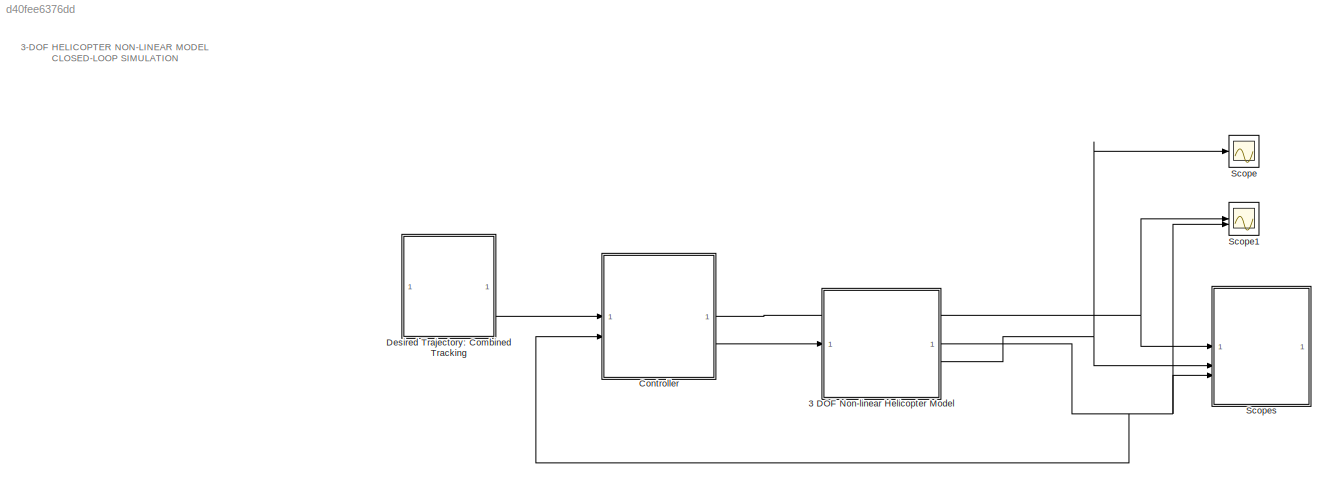
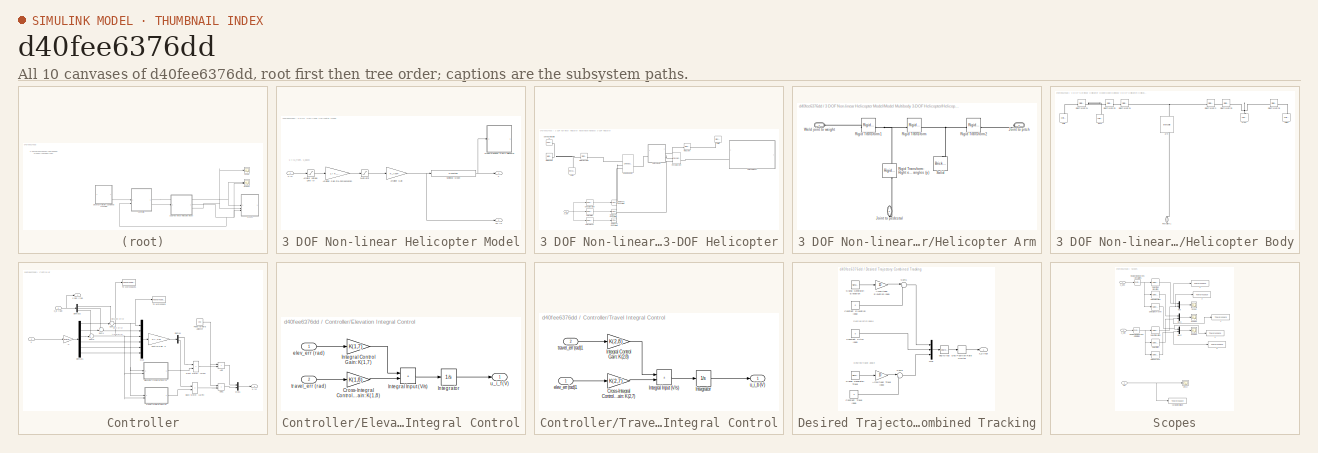
[diagram: thumbnail index - all 10 canvases of the model, root first then tree order]
MODEL slx_d40fee6376dd
KIND model
CONFIG AbsTol = auto
CONFIG EnableMultiTasking = on
CONFIG FixedStep = 0.005
CONFIG MaxStep = 1e-3
CONFIG MinStep = 1e-5
CONFIG RelTol = 1e-5
CONFIG SampleTimeConstraint = Unconstrained
CONFIG SolverName = ode1
CONFIG StartTime = 0.0
CONFIG StopTime = 50
BLOCK [SubSystem] 3 DOF Non-linear Helicopter Model
BLOCK [S-Function] 3 DOF Non-linear Helicopter Model/ Nonlinear Model
  EnableBusSupport = off
  FunctionName = Nonlinear_Helicopter_SFunc
  Parameters = par,X0
  SFcnIsStateOwnerBlock = off
  SFunctionDeploymentMode = off
BLOCK [Saturate] 3 DOF Non-linear Helicopter Model/Amplifer Voltage Limit (V)
  LowerLimit = -VMAX_AMP
  UpperLimit = VMAX_AMP
BLOCK [Gain] 3 DOF Non-linear Helicopter Model/Amplifier Gain
  Gain = K_AMP
  Multiplication = Matrix(K*u)
  OutDataTypeStr = Inherit: Same as input
  ParamDataTypeStr = Inherit: Same as input
  SaturateOnIntegerOverflow = on
BLOCK [Gain] 3 DOF Non-linear Helicopter Model/Amplifier Gain Pre-Compensation
  Gain = 1 / K_AMP
  Multiplication = Matrix(K*u)
  OutDataTypeStr = Inherit: Same as input
  ParamDataTypeStr = Inherit: Same as input
  SaturateOnIntegerOverflow = on
BLOCK [Saturate] 3 DOF Non-linear Helicopter Model/DACB Limit
  LowerLimit = -VMAX_DAC
  UpperLimit = VMAX_DAC
BLOCK [SubSystem] 3 DOF Non-linear Helicopter Model/Model Multibody 3-DOF Helicopter
BLOCK [SubSystem] 3 DOF Non-linear Helicopter Model/Model Multibody 3-DOF Helicopter/Helicopter Arm
BLOCK [PMIOPort] 3 DOF Non-linear Helicopter Model/Model Multibody 3-DOF Helicopter/Helicopter Arm/Joint to pedestal
  NameLocation = left
  Port = 2
  Side = Right
BLOCK [PMIOPort] 3 DOF Non-linear Helicopter Model/Model Multibody 3-DOF Helicopter/Helicopter Arm/Joint to pitch
  NameLocation = top
  Port = 3
  Side = Left
BLOCK [Reference] 3 DOF Non-linear Helicopter Model/Model Multibody 3-DOF Helicopter/Helicopter Arm/Rigid Transform  REF=sm_lib/Frames and
Transforms/Rigid
Transform
  SourceBlock = sm_lib/Frames and\nTransforms/Rigid\nTransform
  SourceType = Rigid\nTransform
BLOCK [Reference] 3 DOF Non-linear Helicopter Model/Model Multibody 3-DOF Helicopter/Helicopter Arm/Rigid Transform1  REF=sm_lib/Frames and
Transforms/Rigid
Transform
  SourceBlock = sm_lib/Frames and\nTransforms/Rigid\nTransform
  SourceType = Rigid\nTransform
BLOCK [Reference] 3 DOF Non-linear Helicopter Model/Model Multibody 3-DOF Helicopter/Helicopter Arm/Rigid Transform2  REF=sm_lib/Frames and
Transforms/Rigid
Transform
  SourceBlock = sm_lib/Frames and\nTransforms/Rigid\nTransform
  SourceType = Rigid\nTransform
BLOCK [Reference] 3 DOF Non-linear Helicopter Model/Model Multibody 3-DOF Helicopter/Helicopter Arm/Rigid Transform: Right elevation (x) & Travel angles (y)  REF=sm_lib/Frames and
Transforms/Rigid
Transform
  NameLocation = right
  SourceBlock = sm_lib/Frames and\nTransforms/Rigid\nTransform
  SourceType = Rigid\nTransform
BLOCK [Reference] 3 DOF Non-linear Helicopter Model/Model Multibody 3-DOF Helicopter/Helicopter Arm/Solid  REF=sm_lib/Body Elements/Brick Solid
  NameLocation = right
  SourceBlock = sm_lib/Body Elements/Brick Solid
  SourceType = Brick Solid
BLOCK [PMIOPort] 3 DOF Non-linear Helicopter Model/Model Multibody 3-DOF Helicopter/Helicopter Arm/Weld joint to weight
  NameLocation = top
  Side = Left
BLOCK [SubSystem] 3 DOF Non-linear Helicopter Model/Model Multibody 3-DOF Helicopter/Helicopter Body
BLOCK [Reference] 3 DOF Non-linear Helicopter Model/Model Multibody 3-DOF Helicopter/Helicopter Body/Back  REF=sm_lib/Body Elements/Cylindrical Solid
  NameLocation = right
  SourceBlock = sm_lib/Body Elements/Cylindrical Solid
  SourceType = Cylindrical Solid
BLOCK [Reference] 3 DOF Non-linear Helicopter Model/Model Multibody 3-DOF Helicopter/Helicopter Body/Front  REF=sm_lib/Body Elements/Cylindrical Solid
  NameLocation = right
  SourceBlock = sm_lib/Body Elements/Cylindrical Solid
  SourceType = Cylindrical Solid
BLOCK [PMIOPort] 3 DOF Non-linear Helicopter Model/Model Multibody 3-DOF Helicopter/Helicopter Body/Rho (pitch)1
  NameLocation = right
  Side = Left
BLOCK [Reference] 3 DOF Non-linear Helicopter Model/Model Multibody 3-DOF Helicopter/Helicopter Body/Rigid Transform  REF=sm_lib/Frames and
Transforms/Rigid
Transform
  SourceBlock = sm_lib/Frames and\nTransforms/Rigid\nTransform
  SourceType = Rigid\nTransform
BLOCK [Reference] 3 DOF Non-linear Helicopter Model/Model Multibody 3-DOF Helicopter/Helicopter Body/Rigid Transform1  REF=sm_lib/Frames and
Transforms/Rigid
Transform
  SourceBlock = sm_lib/Frames and\nTransforms/Rigid\nTransform
  SourceType = Rigid\nTransform
BLOCK [Reference] 3 DOF Non-linear Helicopter Model/Model Multibody 3-DOF Helicopter/Helicopter Body/Rigid Transform2  REF=sm_lib/Frames and
Transforms/Rigid
Transform
  SourceBlock = sm_lib/Frames and\nTransforms/Rigid\nTransform
  SourceType = Rigid\nTransform
BLOCK [Reference] 3 DOF Non-linear Helicopter Model/Model Multibody 3-DOF Helicopter/Helicopter Body/Rigid Transform3  REF=sm_lib/Frames and
Transforms/Rigid
Transform
  SourceBlock = sm_lib/Frames and\nTransforms/Rigid\nTransform
  SourceType = Rigid\nTransform
BLOCK [Reference] 3 DOF Non-linear Helicopter Model/Model Multibody 3-DOF Helicopter/Helicopter Body/Rigid Transform4  REF=sm_lib/Frames and
Transforms/Rigid
Transform
  SourceBlock = sm_lib/Frames and\nTransforms/Rigid\nTransform
  SourceType = Rigid\nTransform
BLOCK [Reference] 3 DOF Non-linear Helicopter Model/Model Multibody 3-DOF Helicopter/Helicopter Body/Rigid Transform5  REF=sm_lib/Frames and
Transforms/Rigid
Transform
  SourceBlock = sm_lib/Frames and\nTransforms/Rigid\nTransform
  SourceType = Rigid\nTransform
BLOCK [Reference] 3 DOF Non-linear Helicopter Model/Model Multibody 3-DOF Helicopter/Helicopter Body/Solid  REF=sm_lib/Body Elements/Cylindrical Solid
  NameLocation = right
  SourceBlock = sm_lib/Body Elements/Cylindrical Solid
  SourceType = Cylindrical Solid
BLOCK [Reference] 3 DOF Non-linear Helicopter Model/Model Multibody 3-DOF Helicopter/Helicopter Body/Solid1  REF=sm_lib/Body Elements/Cylindrical Solid
  NameLocation = right
  SourceBlock = sm_lib/Body Elements/Cylindrical Solid
  SourceType = Cylindrical Solid
BLOCK [Reference] 3 DOF Non-linear Helicopter Model/Model Multibody 3-DOF Helicopter/Helicopter Body/arm  REF=sm_lib/Body Elements/Brick Solid
  NameLocation = right
  SourceBlock = sm_lib/Body Elements/Brick Solid
  SourceType = Brick Solid
BLOCK [Reference] 3 DOF Non-linear Helicopter Model/Model Multibody 3-DOF Helicopter/Revolute Joint  REF=sm_lib/Joints/Revolute Joint
  SourceBlock = sm_lib/Joints/Revolute Joint
  SourceType = Revolute Joint
BLOCK [Reference] 3 DOF Non-linear Helicopter Model/Model Multibody 3-DOF Helicopter/Rigid-Transform  REF=sm_lib/Frames and
Transforms/Rigid
Transform
  SourceBlock = sm_lib/Frames and\nTransforms/Rigid\nTransform
  SourceType = Rigid\nTransform
BLOCK [Selector] 3 DOF Non-linear Helicopter Model/Model Multibody 3-DOF Helicopter/Select Elevation
  IndexOptions = Index vector (dialog)
  Indices = 1
  InputPortWidth = 6
  OutputSizes = 1
BLOCK [Selector] 3 DOF Non-linear Helicopter Model/Model Multibody 3-DOF Helicopter/Select Pitch
  IndexOptions = Index vector (dialog)
  Indices = 2
  InputPortWidth = 6
  OutputSizes = 1
BLOCK [Selector] 3 DOF Non-linear Helicopter Model/Model Multibody 3-DOF Helicopter/Select Travel
  IndexOptions = Index vector (dialog)
  Indices = 3
  InputPortWidth = 6
  OutputSizes = 1
BLOCK [Reference] 3 DOF Non-linear Helicopter Model/Model Multibody 3-DOF Helicopter/Simulink-PS Converter2  REF=nesl_utility/Simulink-PS
Converter
  SourceBlock = nesl_utility/Simulink-PS\nConverter
  SourceType = Simulink-PS\nConverter
BLOCK [Reference] 3 DOF Non-linear Helicopter Model/Model Multibody 3-DOF Helicopter/Simulink-PS Converter3  REF=nesl_utility/Simulink-PS
Converter
  SourceBlock = nesl_utility/Simulink-PS\nConverter
  SourceType = Simulink-PS\nConverter
BLOCK [Reference] 3 DOF Non-linear Helicopter Model/Model Multibody 3-DOF Helicopter/Simulink-PS Converter4  REF=nesl_utility/Simulink-PS
Converter
  SourceBlock = nesl_utility/Simulink-PS\nConverter
  SourceType = Simulink-PS\nConverter
BLOCK [Reference] 3 DOF Non-linear Helicopter Model/Model Multibody 3-DOF Helicopter/Solid  REF=sm_lib/Body Elements/Brick Solid
  NameLocation = right
  SourceBlock = sm_lib/Body Elements/Brick Solid
  SourceType = Brick Solid
BLOCK [Reference] 3 DOF Non-linear Helicopter Model/Model Multibody 3-DOF Helicopter/Solid1  REF=sm_lib/Body Elements/Revolved Solid
  NameLocation = right
  SourceBlock = sm_lib/Body Elements/Revolved Solid
  SourceType = Revolved Solid
BLOCK [Reference] 3 DOF Non-linear Helicopter Model/Model Multibody 3-DOF Helicopter/Solver Configuration  REF=nesl_utility/Solver
Configuration
  SourceBlock = nesl_utility/Solver\nConfiguration
  SourceType = Solver\nConfiguration
BLOCK [Reference] 3 DOF Non-linear Helicopter Model/Model Multibody 3-DOF Helicopter/Universal Joint  REF=sm_lib/Joints/Universal
Joint
  SourceBlock = sm_lib/Joints/Universal\nJoint
  SourceType = Universal\nJoint
BLOCK [Reference] 3 DOF Non-linear Helicopter Model/Model Multibody 3-DOF Helicopter/Weld Joint  REF=sm_lib/Joints/Weld Joint
  SourceBlock = sm_lib/Joints/Weld Joint
  SourceType = Weld Joint
BLOCK [Reference] 3 DOF Non-linear Helicopter Model/Model Multibody 3-DOF Helicopter/World Frame  REF=sm_lib/Frames and
Transforms/World Frame
  SourceBlock = sm_lib/Frames and\nTransforms/World Frame
  SourceType = World Frame
BLOCK [Inport] 3 DOF Non-linear Helicopter Model/Model Multibody 3-DOF Helicopter/X_sim
BLOCK [Outport] 3 DOF Non-linear Helicopter Model/Vm (V)
  Port = 2
  VectorParamsAs1DForOutWhenUnconnected = off
BLOCK [Outport] 3 DOF Non-linear Helicopter Model/X 
  VectorParamsAs1DForOutWhenUnconnected = off
BLOCK [Inport] 3 DOF Non-linear Helicopter Model/u (V)
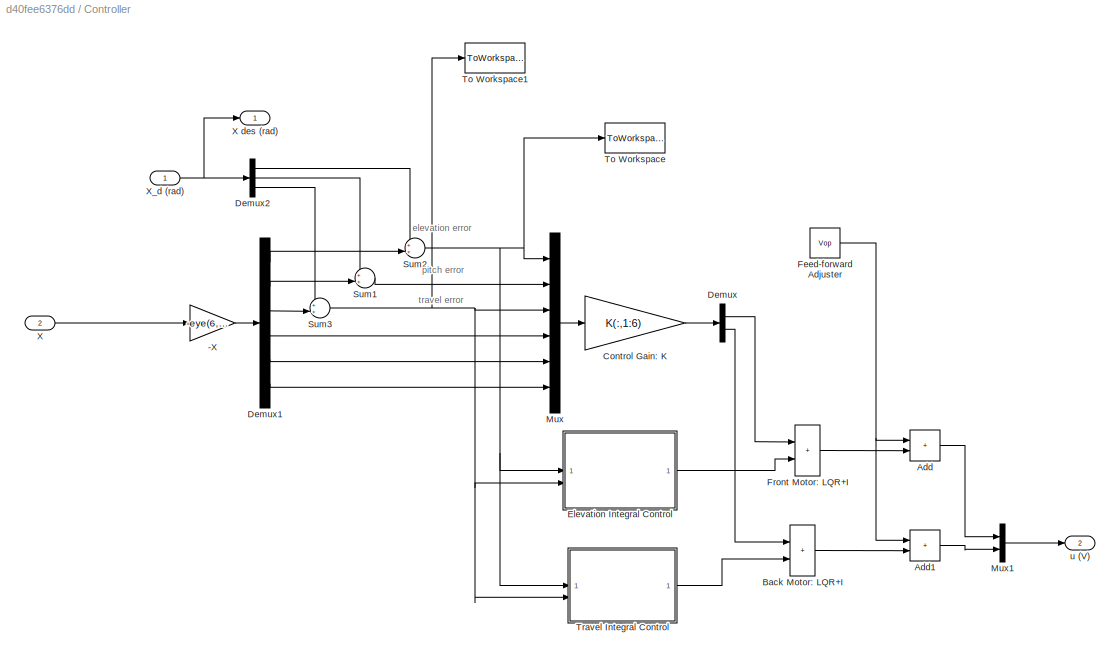
BLOCK [SubSystem] Controller
BLOCK [Gain] Controller/-X
  Gain = -eye(6,6)
  Multiplication = Matrix(K*u)
BLOCK [Sum] Controller/Add
  IconShape = rectangular
BLOCK [Sum] Controller/Add1
  IconShape = rectangular
BLOCK [Sum] Controller/Back Motor: LQR+I
  IconShape = rectangular
BLOCK [Gain] Controller/Control Gain: K
  Gain = K(:,1:6)
  Multiplication = Matrix(K*u)
BLOCK [Demux] Controller/Demux
  Outputs = 2
BLOCK [Demux] Controller/Demux1
  Outputs = 6
BLOCK [Demux] Controller/Demux2
  Outputs = 3
BLOCK [SubSystem] Controller/Elevation Integral Control
BLOCK [Gain] Controller/Elevation Integral Control/Cross-Integral Control Gain: K(1,8)
  Gain = K(1,8)
  Multiplication = Matrix(K*u)
BLOCK [Gain] Controller/Elevation Integral Control/Integral Control Gain: K(1,7)
  Gain = K(1,7)
  Multiplication = Matrix(K*u)
BLOCK [Sum] Controller/Elevation Integral Control/Integral Input (V//s)
  IconShape = rectangular
BLOCK [Integrator] Controller/Elevation Integral Control/Integrator
  LimitOutput = on
  LowerSaturationLimit = -SAT_INT_ERR_ELEV
  UpperSaturationLimit = SAT_INT_ERR_ELEV
BLOCK [Inport] Controller/Elevation Integral Control/elev_err (rad)
BLOCK [Inport] Controller/Elevation Integral Control/travel_err (rad)
  Port = 2
BLOCK [Outport] Controller/Elevation Integral Control/u_i_f (V)
  VectorParamsAs1DForOutWhenUnconnected = off
BLOCK [Constant] Controller/Feed-forward Adjuster
  Value = Vop
BLOCK [Sum] Controller/Front Motor: LQR+I
  IconShape = rectangular
BLOCK [Mux] Controller/Mux
  DisplayOption = bar
  Inputs = 6
BLOCK [Mux] Controller/Mux1
  DisplayOption = bar
  Inputs = 2
BLOCK [Sum] Controller/Sum1
  Inputs = ++|
BLOCK [Sum] Controller/Sum2
  Inputs = ++|
BLOCK [Sum] Controller/Sum3
  Inputs = ++|
BLOCK [ToWorkspace] Controller/To Workspace
  FixptAsFi = on
  MaxDataPoints = inf
  SampleTime = -1
  VariableName = err_elevation
BLOCK [ToWorkspace] Controller/To Workspace1
  FixptAsFi = on
  MaxDataPoints = inf
  SampleTime = -1
  VariableName = err_travel
BLOCK [SubSystem] Controller/Travel Integral Control
BLOCK [Gain] Controller/Travel Integral Control/Cross-Integral Control Gain: K(2,7)
  Gain = K(2,7)
  Multiplication = Matrix(K*u)
BLOCK [Gain] Controller/Travel Integral Control/Integral Control Gain: K(2,8)
  Gain = K(2,8)
  Multiplication = Matrix(K*u)
BLOCK [Sum] Controller/Travel Integral Control/Integral Input (V//s)
  IconShape = rectangular
BLOCK [Integrator] Controller/Travel Integral Control/Integrator
  LimitOutput = on
  LowerSaturationLimit = -SAT_INT_ERR_TRAVEL
  UpperSaturationLimit = SAT_INT_ERR_TRAVEL
BLOCK [Inport] Controller/Travel Integral Control/elev_err (rad)1
BLOCK [Inport] Controller/Travel Integral Control/travel_err (rad)1
  Port = 2
BLOCK [Outport] Controller/Travel Integral Control/u_i_b (V)
  VectorParamsAs1DForOutWhenUnconnected = off
BLOCK [Inport] Controller/X
  Port = 2
BLOCK [Outport] Controller/X des (rad)
  VectorParamsAs1DForOutWhenUnconnected = off
BLOCK [Inport] Controller/X_d (rad)
BLOCK [Outport] Controller/u (V)
  Port = 2
  VectorParamsAs1DForOutWhenUnconnected = off
BLOCK [SubSystem] Desired Trajectory: Combined Tracking
BLOCK [Gain] Desired Trajectory: Combined Tracking/Amplitude: Elevation (deg)
  Gain = 10
BLOCK [Gain] Desired Trajectory: Combined Tracking/Amplitude: Travel (deg)
  Gain = 10
BLOCK [Constant] Desired Trajectory: Combined Tracking/Constant: Elevation (deg)
  Value = 0
BLOCK [Constant] Desired Trajectory: Combined Tracking/Constant: Pitch (deg)
  Value = 0
BLOCK [Constant] Desired Trajectory: Combined Tracking/Constant: Travel (deg)
  Value = 0
BLOCK [RateLimiter] Desired Trajectory: Combined Tracking/Des Position Rate Limiter
  FallingSlewLimit = -CMD_RATE_LIMIT
  RisingSlewLimit = CMD_RATE_LIMIT
  SampleTimeMode = inherited
BLOCK [Mux] Desired Trajectory: Combined Tracking/Mux
  DisplayOption = bar
  Inputs = 3
BLOCK [SignalGenerator] Desired Trajectory: Combined Tracking/Signal Generator: Elevation
  Frequency = 0.1
  WaveForm = square
BLOCK [SignalGenerator] Desired Trajectory: Combined Tracking/Signal Generator: Travel
  Frequency = 0.05
  WaveForm = square
BLOCK [Sum] Desired Trajectory: Combined Tracking/Sum1
  Inputs = |++
BLOCK [Sum] Desired Trajectory: Combined Tracking/Sum2
  Inputs = |++
BLOCK [Reference] Desired Trajectory: Combined Tracking/deg to rad  REF=simulink_extras/Transformations/Degrees to
Radians
  SourceBlock = simulink_extras/Transformations/Degrees to\nRadians
  SourceType = DegreesToRadians
BLOCK [Outport] Desired Trajectory: Combined Tracking/x_d (rad)
  VectorParamsAs1DForOutWhenUnconnected = off
BLOCK [Scope] Scope
  ActiveDisplayYMaximum = 9.838394290680009
  ActiveDisplayYMinimum = -9.1202318462578642
  Floating = off
  GraphicalSettings = {"Style":{"BackgroundColor":[0.12941176470588237,0.12941176470588237,0.12941176470588237],"AxesColor":[0.07058823529411765,0.07058823529411765,0.07058823529411765],"LabelsColor":[0.8509803921568627,0.8509803921568627,0.8509803921568627],"PreserveColors":false,"Visible":[true,true],"LineStyle":["-","-"],"LineWidth":[1.5,1.5],"BarWidth":[0.9,0.9],"LineColor":["auto","auto"],"LineFaceAlpha":[1,1],"Li...<+2230ch>
  MultipleDisplayCache = [{"MaxYLimMag":9.838394290680009,"MaxYLimReal":9.838394290680009,"MinYLimMag":0,"MinYLimReal":-9.1202318462578642,"PlotAsMagnitudePhase":false,"ShowGrid":true,"ShowLegend":false,"Title":"%<SignalLabel>","YLabel":""}]
  NumInputPorts = 1
  ScopeFrameLocation = window
  WasSavedAsWebScope = on
  WindowPosition = [535.000000,375.000000,560.000000,420.000000,]
BLOCK [Scope] Scope1
  ActiveDisplayYMaximum = 107.98754743081702
  ActiveDisplayYMinimum = -87.561677794684243
  DataLoggingVariableName = ScopeData4
  Floating = off
  GraphicalSettings = {"AxesScalingProperties":{"AlignXAxis":"Center","AlignYAxis":"Center","AutoScaleXAxisLimits":false,"AxesScaling":"Manual","AxesScalingNumUpdates":10,"ExpandOnly":true,"ScaleAxesLimitsAtStop":false,"XAxisDataRange":100,"YAxisDataRange":80},"DisplayProperties":{"ColorOrder":["auto","auto","auto","auto","auto","auto","auto","auto","auto","auto","auto","auto","auto","auto","auto","auto","auto","auto",...<+3234ch>
  MultipleDisplayCache = [{"MaxYLimMag":79.934199756721753,"MaxYLimReal":107.98754743081702,"MinYLimMag":0,"MinYLimReal":-87.561677794684243,"PlotAsMagnitudePhase":false,"ShowGrid":true,"ShowLegend":false,"Title":"%<SignalLabel>","YLabel":""}]
  NumInputPorts = 2
  ScopeFrameLocation = window
  WasSavedAsWebScope = on
  WindowPosition = [518.000000,245.000000,885.000000,607.000000,]
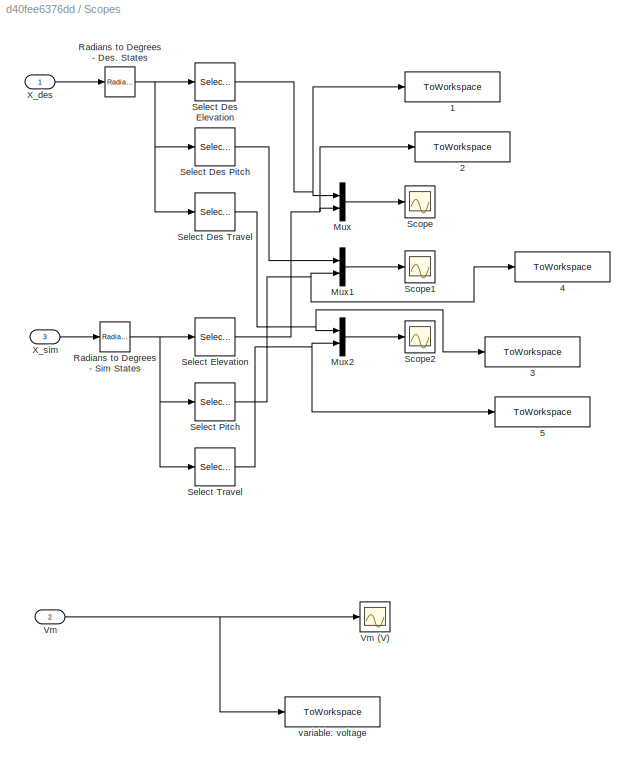
BLOCK [SubSystem] Scopes
BLOCK [ToWorkspace] Scopes/ 1
  FixptAsFi = on
  MaxDataPoints = inf
  SampleTime = -1
  VariableName = elevation_ref
BLOCK [ToWorkspace] Scopes/ 2
  FixptAsFi = on
  MaxDataPoints = inf
  SampleTime = -1
  VariableName = elevation
BLOCK [ToWorkspace] Scopes/ 3
  FixptAsFi = on
  MaxDataPoints = inf
  SampleTime = -1
  VariableName = travel_ref
BLOCK [ToWorkspace] Scopes/ 4
  FixptAsFi = on
  MaxDataPoints = inf
  SampleTime = -1
  VariableName = pitch
BLOCK [ToWorkspace] Scopes/ 5
  FixptAsFi = on
  MaxDataPoints = inf
  SampleTime = -1
  VariableName = travel
BLOCK [Mux] Scopes/Mux
  DisplayOption = bar
  Inputs = 2
BLOCK [Mux] Scopes/Mux1
  DisplayOption = bar
  Inputs = 2
BLOCK [Mux] Scopes/Mux2
  DisplayOption = bar
  Inputs = 2
BLOCK [Reference] Scopes/Radians to Degrees - Des. States  REF=simulink_extras/Transformations/Radians
to Degrees
  SourceBlock = simulink_extras/Transformations/Radians\nto Degrees
  SourceType = RadiansToDegrees
BLOCK [Reference] Scopes/Radians to Degrees - Sim States  REF=simulink_extras/Transformations/Radians
to Degrees
  SourceBlock = simulink_extras/Transformations/Radians\nto Degrees
  SourceType = RadiansToDegrees
BLOCK [Scope] Scopes/Scope
  ActiveDisplayYMaximum = 16.60605
  ActiveDisplayYMinimum = -16.6095
  DataLoggingDecimateData = on
  DataLoggingDecimation = 1
  DataLoggingLimitDataPoints = on
  DataLoggingSaveFormat = Array
  DataLoggingVariableName = ScopeData1
  Floating = off
  GraphicalSettings = {"GraphicalSettings":{"LegacySettings":true,"Style":{"Style":{"AxesColor":"[0 0 0]","ChannelNames":[""],"ColorOrder":"[1 1 0.0666666666666667;0.0745098039215686 0.623529411764706 1;1 0.411764705882353 0.16078431372549;0.392156862745098 0.831372549019608 0.0745098039215686;0.717647058823529 0.274509803921569 1;0.0588235294117647 1 1;1 0.0745098039215686 0.650980392156863]","CurrentConfiguration":"e...<+346ch>  <repeated x3 — deduplicated; at blocks: Scope, Scope1, Scope2>
  MultipleDisplayCache = [{"MaxYLimMag":16.6095,"MaxYLimReal":16.60605,"MinYLimMag":0,"MinYLimReal":-16.6095,"PlotAsMagnitudePhase":false,"ShowGrid":true,"ShowLegend":false,"Title":"%<SignalLabel>","YLabel":""}]
  NumInputPorts = 1
  WasSavedAsWebScope = on
  WindowPosition = [1 42 1920 954]
BLOCK [Scope] Scopes/Scope1
  ActiveDisplayYMaximum = 50.37806
  ActiveDisplayYMinimum = -59.84418
  DataLoggingDecimateData = on
  DataLoggingDecimation = 1
  DataLoggingLimitDataPoints = on
  DataLoggingSaveFormat = Array
  DataLoggingVariableName = ScopeData2
  Floating = off
  MultipleDisplayCache = [{"MaxYLimMag":59.84418,"MaxYLimReal":50.37806,"MinYLimMag":0,"MinYLimReal":-59.84418,"PlotAsMagnitudePhase":false,"ShowGrid":true,"ShowLegend":false,"Title":"%<SignalLabel>","YLabel":""}]
  NumInputPorts = 1
  WasSavedAsWebScope = on
  WindowPosition = [677 299 560 420]
BLOCK [Scope] Scopes/Scope2
  ActiveDisplayYMaximum = 13.73521
  ActiveDisplayYMinimum = -20.08721
  DataLoggingDecimateData = on
  DataLoggingDecimation = 1
  DataLoggingLimitDataPoints = on
  DataLoggingSaveFormat = Array
  DataLoggingVariableName = ScopeData3
  Floating = off
  MultipleDisplayCache = [{"MaxYLimMag":20.08721,"MaxYLimReal":13.73521,"MinYLimMag":0,"MinYLimReal":-20.08721,"PlotAsMagnitudePhase":false,"ShowGrid":true,"ShowLegend":false,"Title":"%<SignalLabel>","YLabel":""}]
  NumInputPorts = 1
  WasSavedAsWebScope = on
  WindowPosition = [1253 323 568 421]
BLOCK [Selector] Scopes/Select Des Elevation
  IndexOptions = Index vector (dialog)
  Indices = 1
  InputPortWidth = 3
  OutputSizes = 1
BLOCK [Selector] Scopes/Select Des Pitch
  IndexOptions = Index vector (dialog)
  Indices = 2
  InputPortWidth = 3
  OutputSizes = 1
BLOCK [Selector] Scopes/Select Des Travel
  IndexOptions = Index vector (dialog)
  Indices = 3
  InputPortWidth = 3
  OutputSizes = 1
BLOCK [Selector] Scopes/Select Elevation
  IndexOptions = Index vector (dialog)
  Indices = 1
  InputPortWidth = 6
  OutputSizes = 1
BLOCK [Selector] Scopes/Select Pitch
  IndexOptions = Index vector (dialog)
  Indices = 2
  InputPortWidth = 6
  OutputSizes = 1
BLOCK [Selector] Scopes/Select Travel
  IndexOptions = Index vector (dialog)
  Indices = 3
  InputPortWidth = 6
  OutputSizes = 1
BLOCK [Inport] Scopes/Vm
  Port = 2
BLOCK [Scope] Scopes/Vm (V)
  ActiveDisplayYMaximum = 6.39533
  ActiveDisplayYMinimum = -12.4748
  DataLoggingDecimateData = on
  DataLoggingDecimation = 1
  DataLoggingSaveFormat = Array
  DataLoggingVariableName = ScopeData2
  Floating = off
  GraphicalSettings = {"GraphicalSettings":{"LegacySettings":true,"Style":{"AxesScalingProperties":{"ScaleAxesLimitsAtStop":false},"Style":{"AxesColor":"[0 0 0]","ChannelNames":[""],"ColorOrder":"[1 1 0.0666666666666667;0.0745098039215686 0.623529411764706 1;1 0.411764705882353 0.16078431372549;0.392156862745098 0.831372549019608 0.0745098039215686;0.717647058823529 0.274509803921569 1;0.0588235294117647 1 1;1 0.074509...<+425ch>
  MultipleDisplayCache = [{"MaxYLimMag":12.4748,"MaxYLimReal":6.39533,"MinYLimMag":0,"MinYLimReal":-12.4748,"PlotAsMagnitudePhase":false,"ShowGrid":true,"ShowLegend":false,"Title":"%<SignalLabel>","YLabel":""}]
  NumInputPorts = 1
  TimeAxisLabels = All
  WasSavedAsWebScope = on
  WindowPosition = [1 1 1184 284]
BLOCK [Inport] Scopes/X_des
BLOCK [Inport] Scopes/X_sim
  Port = 3
BLOCK [ToWorkspace] Scopes/variable: voltage 
  FixptAsFi = on
  MaxDataPoints = inf
  SampleTime = -1
  VariableName = voltage_simu
ANNOTATION (root): 3-DOF HELICOPTER NON-LINEAR MODEL CLOSED-LOOP SIMULATION
ANNOTATION 3 DOF Non-linear Helicopter Model: u = [u_front, u_back]
ANNOTATION Controller: elevation error
ANNOTATION Controller: pitch error
ANNOTATION Controller: travel error
ANNOTATION Desired Trajectory: Combined Tracking: Desired pitch angle
ANNOTATION Desired Trajectory: Combined Tracking: Desired travel angle
NET 3 DOF Non-linear Helicopter Model/ Nonlinear Model:1 -> 3 DOF Non-linear Helicopter Model/Model Multibody 3-DOF Helicopter:1, 3 DOF Non-linear Helicopter Model/X :1
LINE 3 DOF Non-linear Helicopter Model/Amplifer Voltage Limit (V):1 -> 3 DOF Non-linear Helicopter Model/Amplifier Gain Pre-Compensation:1
LINE 3 DOF Non-linear Helicopter Model/Amplifier Gain Pre-Compensation:1 -> 3 DOF Non-linear Helicopter Model/DACB Limit:1
NET 3 DOF Non-linear Helicopter Model/Amplifier Gain:1 -> 3 DOF Non-linear Helicopter Model/ Nonlinear Model:1, 3 DOF Non-linear Helicopter Model/Vm (V):1
LINE 3 DOF Non-linear Helicopter Model/DACB Limit:1 -> 3 DOF Non-linear Helicopter Model/Amplifier Gain:1
LINE 3 DOF Non-linear Helicopter Model/Model Multibody 3-DOF Helicopter/Select Elevation:1 -> 3 DOF Non-linear Helicopter Model/Model Multibody 3-DOF Helicopter/Simulink-PS Converter2:1
LINE 3 DOF Non-linear Helicopter Model/Model Multibody 3-DOF Helicopter/Select Pitch:1 -> 3 DOF Non-linear Helicopter Model/Model Multibody 3-DOF Helicopter/Simulink-PS Converter4:1
LINE 3 DOF Non-linear Helicopter Model/Model Multibody 3-DOF Helicopter/Select Travel:1 -> 3 DOF Non-linear Helicopter Model/Model Multibody 3-DOF Helicopter/Simulink-PS Converter3:1
NET 3 DOF Non-linear Helicopter Model/Model Multibody 3-DOF Helicopter/X_sim:1 -> 3 DOF Non-linear Helicopter Model/Model Multibody 3-DOF Helicopter/Select Elevation:1, 3 DOF Non-linear Helicopter Model/Model Multibody 3-DOF Helicopter/Select Pitch:1, 3 DOF Non-linear Helicopter Model/Model Multibody 3-DOF Helicopter/Select Travel:1
LINE 3 DOF Non-linear Helicopter Model/u (V):1 -> 3 DOF Non-linear Helicopter Model/Amplifer Voltage Limit (V):1
NET 3 DOF Non-linear Helicopter Model:1 -> Controller:2, Scope1:2, Scopes:3
NET 3 DOF Non-linear Helicopter Model:2 -> Scope:1, Scopes:2
LINE Controller/-X:1 -> Controller/Demux1:1
LINE Controller/Add1:1 -> Controller/Mux1:2
LINE Controller/Add:1 -> Controller/Mux1:1
LINE Controller/Back Motor: LQR+I:1 -> Controller/Add1:2
LINE Controller/Control Gain: K:1 -> Controller/Demux:1
LINE Controller/Demux1:1 -> Controller/Sum2:2
LINE Controller/Demux1:2 -> Controller/Sum1:2
LINE Controller/Demux1:3 -> Controller/Sum3:2
LINE Controller/Demux1:4 -> Controller/Mux:4
LINE Controller/Demux1:5 -> Controller/Mux:5
LINE Controller/Demux1:6 -> Controller/Mux:6
LINE Controller/Demux2:1 -> Controller/Sum2:1
LINE Controller/Demux2:2 -> Controller/Sum1:1
LINE Controller/Demux2:3 -> Controller/Sum3:1
LINE Controller/Demux:1 -> Controller/Front Motor: LQR+I:1
LINE Controller/Demux:2 -> Controller/Back Motor: LQR+I:1
LINE Controller/Elevation Integral Control/Cross-Integral Control Gain: K(1,8):1 -> Controller/Elevation Integral Control/Integral Input (V//s):2
LINE Controller/Elevation Integral Control/Integral Control Gain: K(1,7):1 -> Controller/Elevation Integral Control/Integral Input (V//s):1
LINE Controller/Elevation Integral Control/Integral Input (V//s):1 -> Controller/Elevation Integral Control/Integrator:1
LINE Controller/Elevation Integral Control/Integrator:1 -> Controller/Elevation Integral Control/u_i_f (V):1
LINE Controller/Elevation Integral Control/elev_err (rad):1 -> Controller/Elevation Integral Control/Integral Control Gain: K(1,7):1
LINE Controller/Elevation Integral Control/travel_err (rad):1 -> Controller/Elevation Integral Control/Cross-Integral Control Gain: K(1,8):1
LINE Controller/Elevation Integral Control:1 -> Controller/Front Motor: LQR+I:2
NET Controller/Feed-forward Adjuster:1 -> Controller/Add1:1, Controller/Add:1
LINE Controller/Front Motor: LQR+I:1 -> Controller/Add:2
LINE Controller/Mux1:1 -> Controller/u (V):1
LINE Controller/Mux:1 -> Controller/Control Gain: K:1
LINE Controller/Sum1:1 -> Controller/Mux:2
NET Controller/Sum2:1 -> Controller/Elevation Integral Control:1, Controller/Mux:1, Controller/To Workspace:1, Controller/Travel Integral Control:1
NET Controller/Sum3:1 -> Controller/Elevation Integral Control:2, Controller/Mux:3, Controller/To Workspace1:1, Controller/Travel Integral Control:2
LINE Controller/Travel Integral Control/Cross-Integral Control Gain: K(2,7):1 -> Controller/Travel Integral Control/Integral Input (V//s):2
LINE Controller/Travel Integral Control/Integral Control Gain: K(2,8):1 -> Controller/Travel Integral Control/Integral Input (V//s):1
LINE Controller/Travel Integral Control/Integral Input (V//s):1 -> Controller/Travel Integral Control/Integrator:1
LINE Controller/Travel Integral Control/Integrator:1 -> Controller/Travel Integral Control/u_i_b (V):1
LINE Controller/Travel Integral Control/elev_err (rad)1:1 -> Controller/Travel Integral Control/Cross-Integral Control Gain: K(2,7):1
LINE Controller/Travel Integral Control/travel_err (rad)1:1 -> Controller/Travel Integral Control/Integral Control Gain: K(2,8):1
LINE Controller/Travel Integral Control:1 -> Controller/Back Motor: LQR+I:2
LINE Controller/X:1 -> Controller/-X:1
NET Controller/X_d (rad):1 -> Controller/Demux2:1, Controller/X des (rad):1
NET Controller:1 -> Scope1:1, Scopes:1
LINE Controller:2 -> 3 DOF Non-linear Helicopter Model:1
LINE Desired Trajectory: Combined Tracking/Amplitude: Elevation (deg):1 -> Desired Trajectory: Combined Tracking/Sum1:1
LINE Desired Trajectory: Combined Tracking/Amplitude: Travel (deg):1 -> Desired Trajectory: Combined Tracking/Sum2:1
LINE Desired Trajectory: Combined Tracking/Constant: Elevation (deg):1 -> Desired Trajectory: Combined Tracking/Sum1:2
LINE Desired Trajectory: Combined Tracking/Constant: Pitch (deg):1 -> Desired Trajectory: Combined Tracking/Mux:2
LINE Desired Trajectory: Combined Tracking/Constant: Travel (deg):1 -> Desired Trajectory: Combined Tracking/Sum2:2
LINE Desired Trajectory: Combined Tracking/Des Position Rate Limiter:1 -> Desired Trajectory: Combined Tracking/x_d (rad):1
LINE Desired Trajectory: Combined Tracking/Mux:1 -> Desired Trajectory: Combined Tracking/deg to rad:1
LINE Desired Trajectory: Combined Tracking/Signal Generator: Elevation:1 -> Desired Trajectory: Combined Tracking/Amplitude: Elevation (deg):1
LINE Desired Trajectory: Combined Tracking/Signal Generator: Travel:1 -> Desired Trajectory: Combined Tracking/Amplitude: Travel (deg):1
LINE Desired Trajectory: Combined Tracking/Sum1:1 -> Desired Trajectory: Combined Tracking/Mux:1
LINE Desired Trajectory: Combined Tracking/Sum2:1 -> Desired Trajectory: Combined Tracking/Mux:3
LINE Desired Trajectory: Combined Tracking/deg to rad:1 -> Desired Trajectory: Combined Tracking/Des Position Rate Limiter:1
LINE Desired Trajectory: Combined Tracking:1 -> Controller:1
LINE Scopes/Mux1:1 -> Scopes/Scope1:1
LINE Scopes/Mux2:1 -> Scopes/Scope2:1
LINE Scopes/Mux:1 -> Scopes/Scope:1
NET Scopes/Radians to Degrees - Des. States:1 -> Scopes/Select Des Elevation:1, Scopes/Select Des Pitch:1, Scopes/Select Des Travel:1
NET Scopes/Radians to Degrees - Sim States:1 -> Scopes/Select Elevation:1, Scopes/Select Pitch:1, Scopes/Select Travel:1
NET Scopes/Select Des Elevation:1 -> Scopes/ 1:1, Scopes/Mux:1
LINE Scopes/Select Des Pitch:1 -> Scopes/Mux1:1
NET Scopes/Select Des Travel:1 -> Scopes/ 3:1, Scopes/Mux2:1
NET Scopes/Select Elevation:1 -> Scopes/ 2:1, Scopes/Mux:2
NET Scopes/Select Pitch:1 -> Scopes/ 4:1, Scopes/Mux1:2
NET Scopes/Select Travel:1 -> Scopes/ 5:1, Scopes/Mux2:2
NET Scopes/Vm:1 -> Scopes/Vm (V):1, Scopes/variable: voltage :1
LINE Scopes/X_des:1 -> Scopes/Radians to Degrees - Des. States:1
LINE Scopes/X_sim:1 -> Scopes/Radians to Degrees - Sim States:1
PLINE 3 DOF Non-linear Helicopter Model/Model Multibody 3-DOF Helicopter/Helicopter Arm/Joint to pedestal:RConn1 -- 3 DOF Non-linear Helicopter Model/Model Multibody 3-DOF Helicopter/Helicopter Arm/Rigid Transform: Right elevation (x) & Travel angles (y):RConn1
PLINE 3 DOF Non-linear Helicopter Model/Model Multibody 3-DOF Helicopter/Helicopter Arm/Joint to pitch:RConn1 -- 3 DOF Non-linear Helicopter Model/Model Multibody 3-DOF Helicopter/Helicopter Arm/Rigid Transform2:RConn1
PNET net1: 3 DOF Non-linear Helicopter Model/Model Multibody 3-DOF Helicopter/Helicopter Arm/Rigid Transform1:LConn1 -- 3 DOF Non-linear Helicopter Model/Model Multibody 3-DOF Helicopter/Helicopter Arm/Rigid Transform: Right elevation (x) & Travel angles (y):LConn1 -- 3 DOF Non-linear Helicopter Model/Model Multibody 3-DOF Helicopter/Helicopter Arm/Rigid Transform:RConn1
PLINE 3 DOF Non-linear Helicopter Model/Model Multibody 3-DOF Helicopter/Helicopter Arm/Rigid Transform1:RConn1 -- 3 DOF Non-linear Helicopter Model/Model Multibody 3-DOF Helicopter/Helicopter Arm/Weld joint to weight:RConn1
PNET net2: 3 DOF Non-linear Helicopter Model/Model Multibody 3-DOF Helicopter/Helicopter Arm/Rigid Transform2:LConn1 -- 3 DOF Non-linear Helicopter Model/Model Multibody 3-DOF Helicopter/Helicopter Arm/Rigid Transform:LConn1 -- 3 DOF Non-linear Helicopter Model/Model Multibody 3-DOF Helicopter/Helicopter Arm/Solid:RConn1
PLINE 3 DOF Non-linear Helicopter Model/Model Multibody 3-DOF Helicopter/Helicopter Arm:LConn1 -- 3 DOF Non-linear Helicopter Model/Model Multibody 3-DOF Helicopter/Weld Joint:LConn1
PLINE 3 DOF Non-linear Helicopter Model/Model Multibody 3-DOF Helicopter/Helicopter Arm:LConn2 -- 3 DOF Non-linear Helicopter Model/Model Multibody 3-DOF Helicopter/Revolute Joint:LConn1
PLINE 3 DOF Non-linear Helicopter Model/Model Multibody 3-DOF Helicopter/Helicopter Arm:RConn1 -- 3 DOF Non-linear Helicopter Model/Model Multibody 3-DOF Helicopter/Universal Joint:RConn1
PNET net3: 3 DOF Non-linear Helicopter Model/Model Multibody 3-DOF Helicopter/Helicopter Body/Back:RConn1 -- 3 DOF Non-linear Helicopter Model/Model Multibody 3-DOF Helicopter/Helicopter Body/Rigid Transform2:RConn1 -- 3 DOF Non-linear Helicopter Model/Model Multibody 3-DOF Helicopter/Helicopter Body/Rigid Transform4:RConn1
PNET net4: 3 DOF Non-linear Helicopter Model/Model Multibody 3-DOF Helicopter/Helicopter Body/Front:RConn1 -- 3 DOF Non-linear Helicopter Model/Model Multibody 3-DOF Helicopter/Helicopter Body/Rigid Transform3:LConn1 -- 3 DOF Non-linear Helicopter Model/Model Multibody 3-DOF Helicopter/Helicopter Body/Rigid Transform5:LConn1
PLINE 3 DOF Non-linear Helicopter Model/Model Multibody 3-DOF Helicopter/Helicopter Body/Rho (pitch)1:RConn1 -- 3 DOF Non-linear Helicopter Model/Model Multibody 3-DOF Helicopter/Helicopter Body/arm:LConn1
PNET net5: 3 DOF Non-linear Helicopter Model/Model Multibody 3-DOF Helicopter/Helicopter Body/Rigid Transform1:LConn1 -- 3 DOF Non-linear Helicopter Model/Model Multibody 3-DOF Helicopter/Helicopter Body/Rigid Transform:LConn1 -- 3 DOF Non-linear Helicopter Model/Model Multibody 3-DOF Helicopter/Helicopter Body/arm:RConn1
PLINE 3 DOF Non-linear Helicopter Model/Model Multibody 3-DOF Helicopter/Helicopter Body/Rigid Transform1:RConn1 -- 3 DOF Non-linear Helicopter Model/Model Multibody 3-DOF Helicopter/Helicopter Body/Rigid Transform2:LConn1
PLINE 3 DOF Non-linear Helicopter Model/Model Multibody 3-DOF Helicopter/Helicopter Body/Rigid Transform3:RConn1 -- 3 DOF Non-linear Helicopter Model/Model Multibody 3-DOF Helicopter/Helicopter Body/Rigid Transform:RConn1
PLINE 3 DOF Non-linear Helicopter Model/Model Multibody 3-DOF Helicopter/Helicopter Body/Rigid Transform4:LConn1 -- 3 DOF Non-linear Helicopter Model/Model Multibody 3-DOF Helicopter/Helicopter Body/Solid:RConn1
PLINE 3 DOF Non-linear Helicopter Model/Model Multibody 3-DOF Helicopter/Helicopter Body/Rigid Transform5:RConn1 -- 3 DOF Non-linear Helicopter Model/Model Multibody 3-DOF Helicopter/Helicopter Body/Solid1:RConn1
PLINE 3 DOF Non-linear Helicopter Model/Model Multibody 3-DOF Helicopter/Helicopter Body:LConn1 -- 3 DOF Non-linear Helicopter Model/Model Multibody 3-DOF Helicopter/Revolute Joint:RConn1
PLINE 3 DOF Non-linear Helicopter Model/Model Multibody 3-DOF Helicopter/Revolute Joint:LConn2 -- 3 DOF Non-linear Helicopter Model/Model Multibody 3-DOF Helicopter/Simulink-PS Converter4:RConn1
PNET net6: 3 DOF Non-linear Helicopter Model/Model Multibody 3-DOF Helicopter/Rigid-Transform:LConn1 -- 3 DOF Non-linear Helicopter Model/Model Multibody 3-DOF Helicopter/Solid1:RConn1 -- 3 DOF Non-linear Helicopter Model/Model Multibody 3-DOF Helicopter/Solver Configuration:RConn1 -- 3 DOF Non-linear Helicopter Model/Model Multibody 3-DOF Helicopter/World Frame:RConn1
PLINE 3 DOF Non-linear Helicopter Model/Model Multibody 3-DOF Helicopter/Rigid-Transform:RConn1 -- 3 DOF Non-linear Helicopter Model/Model Multibody 3-DOF Helicopter/Universal Joint:LConn1
PLINE 3 DOF Non-linear Helicopter Model/Model Multibody 3-DOF Helicopter/Simulink-PS Converter2:RConn1 -- 3 DOF Non-linear Helicopter Model/Model Multibody 3-DOF Helicopter/Universal Joint:LConn2
PLINE 3 DOF Non-linear Helicopter Model/Model Multibody 3-DOF Helicopter/Simulink-PS Converter3:RConn1 -- 3 DOF Non-linear Helicopter Model/Model Multibody 3-DOF Helicopter/Universal Joint:LConn3
PLINE 3 DOF Non-linear Helicopter Model/Model Multibody 3-DOF Helicopter/Solid:RConn1 -- 3 DOF Non-linear Helicopter Model/Model Multibody 3-DOF Helicopter/Weld Joint:RConn1
note: NET lines group one-source signal fan-out (src -> all destinations, sorted); 1:1 wires keep LINE; PNET lines group multi-terminal physical nets as a canonical sorted terminal list (undirected conserving connections); 2-terminal nets keep the pairwise PLINE form
